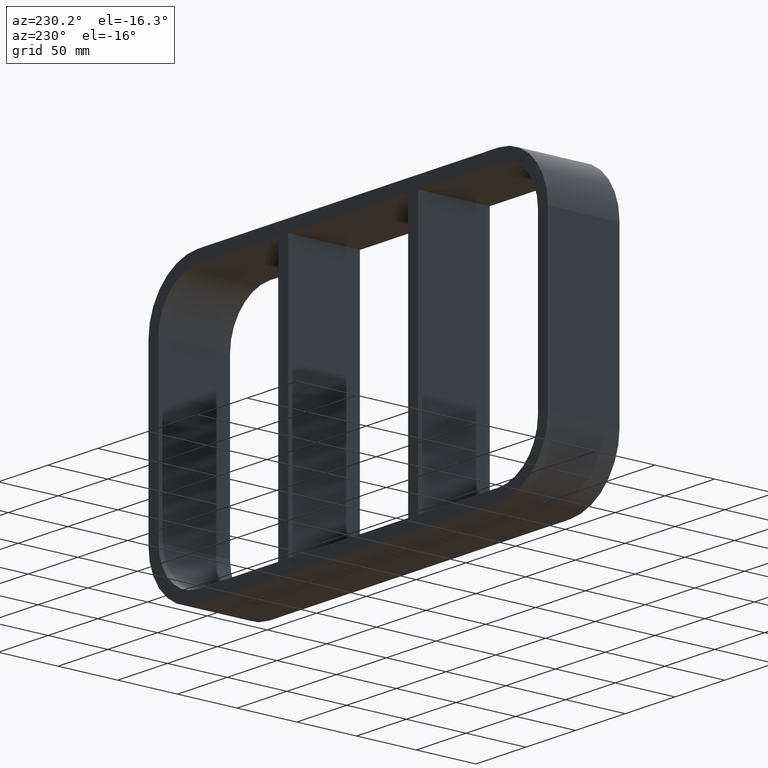
[diagram: clean part render]
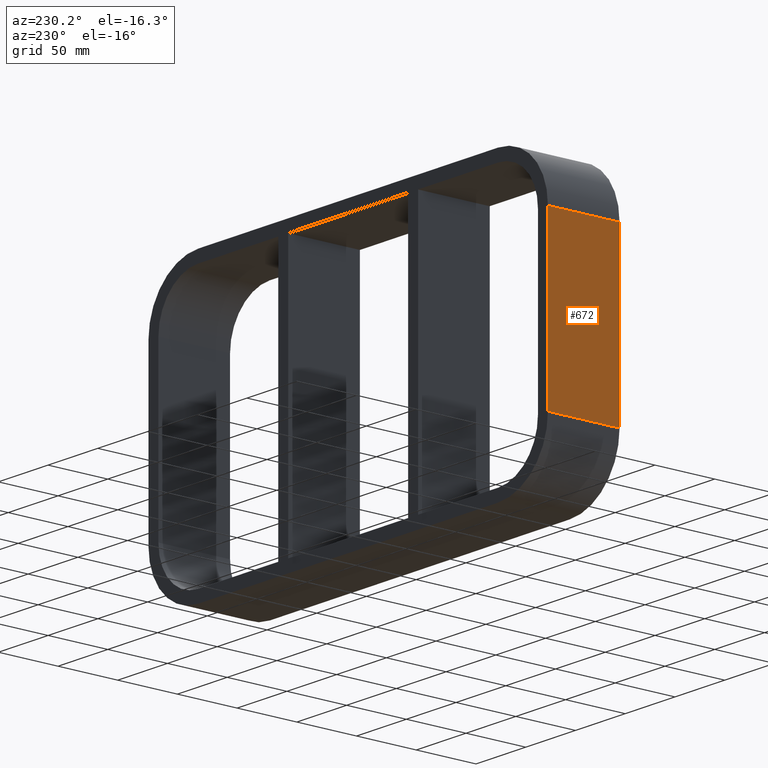
[diagram: same view with one face highlighted and labeled with its STEP entity id]
A machine part, auxiliary view. The second image highlights one B-rep face of the part: STEP entity #672.
In plain terms, the highlighted planar face has unit normal (-1, 0, 0).
Its self-contained STEP definition (entity closure, byte-faithful):
#469=CARTESIAN_POINT('',(-200.75000000000003,-3.0,68.999999999999986));
#470=VERTEX_POINT('',#469);
#478=CARTESIAN_POINT('',(-200.75000000000003,-3.0,-68.999999999999986));
#479=VERTEX_POINT('',#478);
#480=CARTESIAN_POINT('',(-200.75000000000003,-3.0,68.999999999999986));
#481=DIRECTION('',(0.0,0.0,-1.0));
#482=VECTOR('',#481,137.99999999999997);
#483=LINE('',#480,#482);
#484=EDGE_CURVE('',#470,#479,#483,.T.);
#622=CARTESIAN_POINT('',(-200.75000000000003,57.0,-68.999999999999986));
#623=VERTEX_POINT('',#622);
#640=CARTESIAN_POINT('',(-200.75000000000003,-3.0,-68.999999999999986));
#641=DIRECTION('',(0.0,1.0,0.0));
#642=VECTOR('',#641,60.0);
#643=LINE('',#640,#642);
#644=EDGE_CURVE('',#479,#623,#643,.T.);
#649=CARTESIAN_POINT('',(-200.75000000000003,0.0,-118.99999999999999));
#650=DIRECTION('',(-1.0,0.0,0.0));
#651=DIRECTION('',(0.0,0.0,1.0));
#652=AXIS2_PLACEMENT_3D('',#649,#650,#651);
#653=PLANE('',#652);
#654=ORIENTED_EDGE('',*,*,#644,.F.);
#655=ORIENTED_EDGE('',*,*,#484,.F.);
#656=CARTESIAN_POINT('',(-200.75000000000003,57.0,68.999999999999986));
#657=VERTEX_POINT('',#656);
#658=CARTESIAN_POINT('',(-200.75000000000003,57.0,68.999999999999986));
#659=DIRECTION('',(0.0,-1.0,0.0));
#660=VECTOR('',#659,60.0);
#661=LINE('',#658,#660);
#662=EDGE_CURVE('',#657,#470,#661,.T.);
#663=ORIENTED_EDGE('',*,*,#662,.F.);
#664=CARTESIAN_POINT('',(-200.75000000000003,57.0,-68.999999999999986));
#665=DIRECTION('',(0.0,0.0,1.0));
#666=VECTOR('',#665,137.99999999999997);
#667=LINE('',#664,#666);
#668=EDGE_CURVE('',#623,#657,#667,.T.);
#669=ORIENTED_EDGE('',*,*,#668,.F.);
#670=EDGE_LOOP('',(#654,#655,#663,#669));
#671=FACE_OUTER_BOUND('',#670,.T.);
#672=ADVANCED_FACE('',(#671),#653,.T.);